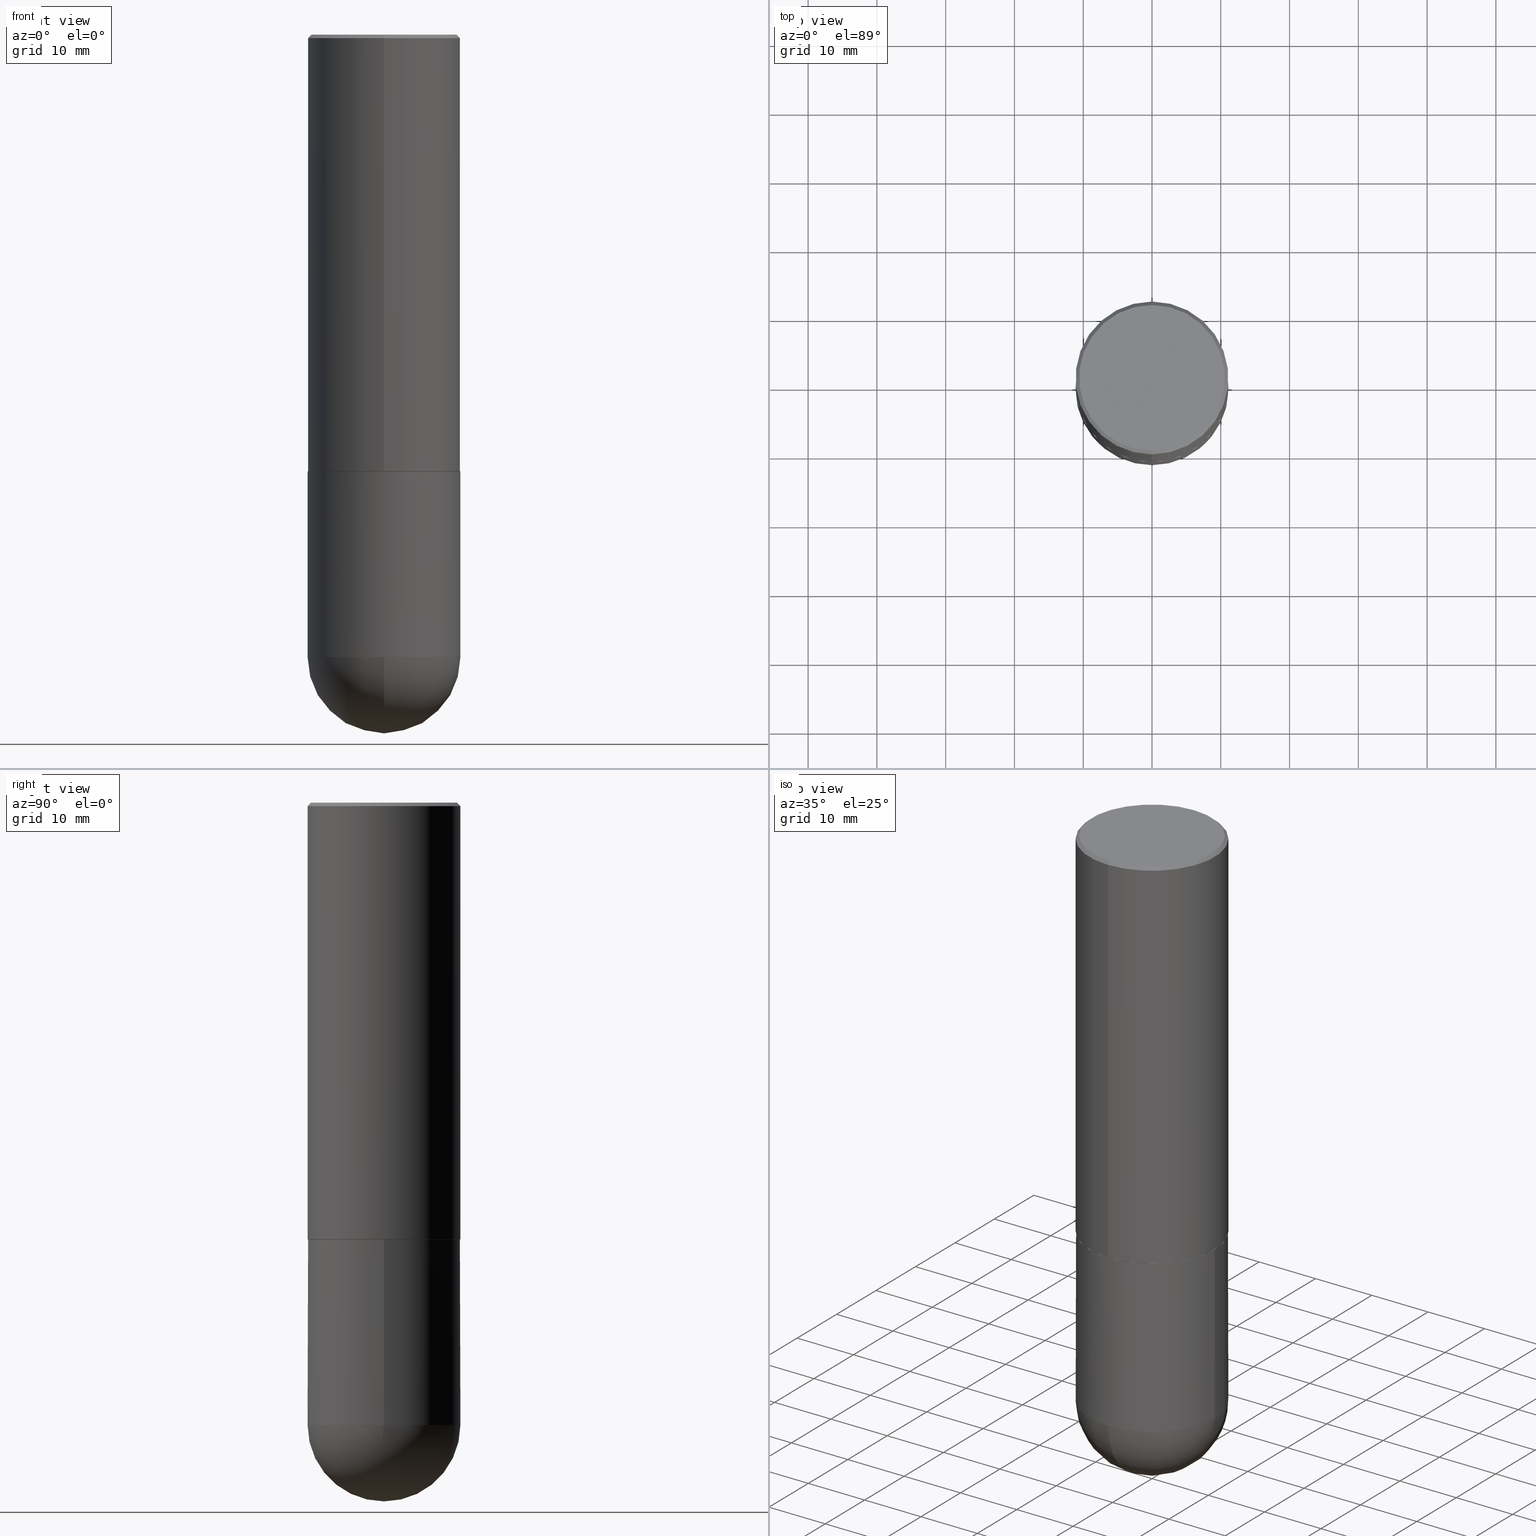
[diagram: canonical four-view strip — front | top / right | iso, engineering-drawing reading convention]
A machine part, canonical four-view strip (front | top / right | iso — engineering-drawing reading convention). The complete STEP part file that produces these views, byte-faithful:
ISO-10303-21;
HEADER;
FILE_DESCRIPTION (( 'STEP AP203' ),
    '1' );
FILE_NAME ('30174.STEP',
    '2024-02-21T16:35:57',
    ( '' ),
    ( '' ),
    'SwSTEP 2.0',
    'SolidWorks 2023',
    '' );
FILE_SCHEMA (( 'CONFIG_CONTROL_DESIGN' ));
ENDSEC;

DATA;
#1 = AXIS2_PLACEMENT_3D ( 'NONE', #284, #373, #382 ) ;
#2 = CIRCLE ( 'NONE', #32, 0.4375000000000000000 ) ;
#3 = DIRECTION ( 'NONE',  ( -2.445468806185136597E-29, 3.491481338843145583E-15, 1.000000000000000000 ) ) ;
#4 = EDGE_CURVE ( 'NONE', #410, #159, #161, .T. ) ;
#5 = CC_DESIGN_PERSON_AND_ORGANIZATION_ASSIGNMENT ( #367, #85, ( #24 ) ) ;
#6 = FACE_OUTER_BOUND ( 'NONE', #88, .T. ) ;
#7 = FACE_OUTER_BOUND ( 'NONE', #56, .T. ) ;
#8 = DIRECTION ( 'NONE',  ( -6.982962677686265133E-15, -1.000000000000000000, 3.492862791899308071E-15 ) ) ;
#9 = APPROVAL_DATE_TIME ( #264, #65 ) ;
#10 = AXIS2_PLACEMENT_3D ( 'NONE', #200, #272, #114 ) ;
#11 = APPROVAL_PERSON_ORGANIZATION ( #179, #141, #392 ) ;
#12 = CARTESIAN_POINT ( 'NONE',  ( 4.891158429268082416E-31, -6.982646455320579930E-17, -0.02000000000000009756 ) ) ;
#13 = ORIENTED_EDGE ( 'NONE', *, *, #411, .F. ) ;
#14 = CARTESIAN_POINT ( 'NONE',  ( -2.932862894047327755E-15, -0.4174999999999996492, 1.722209210515538921E-15 ) ) ;
#15 = VERTEX_POINT ( 'NONE', #280 ) ;
#16 = CARTESIAN_POINT ( 'NONE',  ( -0.4375000000000000000, -7.474928339417847141E-15, -2.500000000000000000 ) ) ;
#17 = ORIENTED_EDGE ( 'NONE', *, *, #298, .F. ) ;
#18 = AXIS2_PLACEMENT_3D ( 'NONE', #37, #70, #102 ) ;
#19 = ADVANCED_FACE ( 'NONE', ( #346 ), #72, .T. ) ;
#20 = ORIENTED_EDGE ( 'NONE', *, *, #157, .T. ) ;
#21 = ORIENTED_EDGE ( 'NONE', *, *, #97, .T. ) ;
#22 = CARTESIAN_POINT ( 'NONE',  ( -3.001467874025043875E-15, -0.4375000000000000555, -0.01999999999999857100 ) ) ;
#23 = CARTESIAN_POINT ( 'NONE',  ( 3.101519041592897653E-15, 0.4364999999999912283, -2.500000000000001776 ) ) ;
#24 = PRODUCT ( '30174', '30174', '', ( #91 ) ) ;
#25 = AXIS2_PLACEMENT_3D ( 'NONE', #28, #287, #164 ) ;
#26 = LENGTH_MEASURE_WITH_UNIT ( LENGTH_MEASURE( 0.02539999999999999897 ), #219 );
#27 = VERTEX_POINT ( 'NONE', #283 ) ;
#28 = CARTESIAN_POINT ( 'NONE',  ( 8.380862844120662879E-29, -1.291258463776875784E-14, -3.562500000000000000 ) ) ;
#29 = EDGE_CURVE ( 'NONE', #176, #338, #358, .T. ) ;
#30 = CARTESIAN_POINT ( 'NONE',  ( 8.711982622034549126E-29, -1.243840226962870597E-14, -3.562500000000000000 ) ) ;
#31 = CC_DESIGN_PERSON_AND_ORGANIZATION_ASSIGNMENT ( #80, #47, ( #99 ) ) ;
#32 = AXIS2_PLACEMENT_3D ( 'NONE', #81, #303, #292 ) ;
#33 = CARTESIAN_POINT ( 'NONE',  ( 3.105071755271698946E-15, 0.4364999999999912283, -2.500000000000001776 ) ) ;
#34 = ADVANCED_FACE ( 'NONE', ( #252 ), #125, .F. ) ;
#35 = CARTESIAN_POINT ( 'NONE',  ( 3.108624468950438708E-15, 0.4375000000000001110, -1.527453912101369540E-15 ) ) ;
#36 = DIRECTION ( 'NONE',  ( 1.000000000000000000, -6.982962677686266711E-15, 4.876176775795935232E-29 ) ) ;
#37 = CARTESIAN_POINT ( 'NONE',  ( 2.915386917934013512E-15, 0.4174999999999996492, -1.325336566064474689E-15 ) ) ;
#38 = AXIS2_PLACEMENT_3D ( 'NONE', #349, #64, #195 ) ;
#39 = LOCAL_TIME ( 11, 35, 57.00000000000000000, #76 ) ;
#40 = DATE_TIME_ROLE ( 'creation_date' ) ;
#41 = CALENDAR_DATE ( 2024, 21, 2 ) ;
#42 = MANIFOLD_SOLID_BREP ( 'Body-Move/Copy2[1]', #379 ) ;
#43 = CIRCLE ( 'NONE', #10, 0.4375000000000002776 ) ;
#44 = ORIENTED_EDGE ( 'NONE', *, *, #242, .T. ) ;
#45 = DIRECTION ( 'NONE',  ( 2.445579214634029192E-29, -3.491323227660272783E-15, -1.000000000000000000 ) ) ;
#46 = ORIENTED_EDGE ( 'NONE', *, *, #285, .T. ) ;
#47 = PERSON_AND_ORGANIZATION_ROLE ( 'creator' ) ;
#48 = DIRECTION ( 'NONE',  ( -6.982962677686264344E-15, -1.000000000000000000, 3.755117517064279208E-15 ) ) ;
#49 = ORIENTED_EDGE ( 'NONE', *, *, #385, .T. ) ;
#50 = CC_DESIGN_PERSON_AND_ORGANIZATION_ASSIGNMENT ( #109, #207, ( #118 ) ) ;
#51 = CARTESIAN_POINT ( 'NONE',  ( 8.380862844120662879E-29, -1.291258463776875784E-14, -3.562500000000000000 ) ) ;
#52 = ORIENTED_EDGE ( 'NONE', *, *, #359, .T. ) ;
#53 = VECTOR ( 'NONE', #101, 39.37007874015748143 ) ;
#54 = VECTOR ( 'NONE', #232, 39.37007874015748143 ) ;
#55 = CARTESIAN_POINT ( 'NONE',  ( 8.711982622034549126E-29, -1.243840226962870597E-14, -3.562500000000000000 ) ) ;
#56 = EDGE_LOOP ( 'NONE', ( #217, #20, #13, #123 ) ) ;
#57 = CARTESIAN_POINT ( 'NONE',  ( 8.380862844120662879E-29, -1.291258463776875784E-14, -3.562500000000000000 ) ) ;
#58 = ORIENTED_EDGE ( 'NONE', *, *, #150, .F. ) ;
#59 = ADVANCED_FACE ( 'NONE', ( #247 ), #348, .T. ) ;
#60 = DIRECTION ( 'NONE',  ( 1.000000000000000000, -6.982962677686265133E-15, 0.000000000000000000 ) ) ;
#61 = FACE_OUTER_BOUND ( 'NONE', #270, .T. ) ;
#62 = VECTOR ( 'NONE', #68, 39.37007874015748143 ) ;
#63 = CARTESIAN_POINT ( 'NONE',  ( 8.711982622034549126E-29, -1.243840226962870597E-14, -3.562500000000000000 ) ) ;
#64 = DIRECTION ( 'NONE',  ( -2.445579214634029192E-29, 3.491323227660272783E-15, 1.000000000000000000 ) ) ;
#65 = APPROVAL ( #105, 'UNSPECIFIED' ) ;
#66 = ORIENTED_EDGE ( 'NONE', *, *, #115, .T. ) ;
#67 = AXIS2_PLACEMENT_3D ( 'NONE', #307, #127, #376 ) ;
#68 = DIRECTION ( 'NONE',  ( -4.937700262165728178E-15, -0.7071067811867141062, 0.7071067811863809283 ) ) ;
#69 = FACE_OUTER_BOUND ( 'NONE', #156, .T. ) ;
#70 = DIRECTION ( 'NONE',  ( 2.445579214634028631E-29, -3.491323227660273177E-15, -1.000000000000000000 ) ) ;
#71 = PERSON_AND_ORGANIZATION_ROLE ( 'design_supplier' ) ;
#72 = CONICAL_SURFACE ( 'NONE', #192, 0.4364999999999999991, 0.7853981633976873100 ) ;
#73 = CIRCLE ( 'NONE', #265, 0.4364999999999999991 ) ;
#74 = PERSON_AND_ORGANIZATION_ROLE ( 'creator' ) ;
#75 = PRODUCT_RELATED_PRODUCT_CATEGORY ( 'detail', '', ( #24 ) ) ;
#76 = COORDINATED_UNIVERSAL_TIME_OFFSET ( 5, 0, .BEHIND. ) ;
#77 = CC_DESIGN_PERSON_AND_ORGANIZATION_ASSIGNMENT ( #330, #71, ( #99 ) ) ;
#78 = ADVANCED_FACE ( 'NONE', ( #61 ), #89, .T. ) ;
#79 = ORIENTED_EDGE ( 'NONE', *, *, #344, .T. ) ;
#80 = PERSON_AND_ORGANIZATION ( #281, #300 ) ;
#81 = CARTESIAN_POINT ( 'NONE',  ( 6.113672015462842613E-29, -8.728703347107864943E-15, -2.500000000000000000 ) ) ;
#82 = ORIENTED_EDGE ( 'NONE', *, *, #115, .F. ) ;
#83 = DIRECTION ( 'NONE',  ( -6.982962677686264344E-15, -1.000000000000000000, 3.755117517064279208E-15 ) ) ;
#84 = ORIENTED_EDGE ( 'NONE', *, *, #344, .F. ) ;
#85 = PERSON_AND_ORGANIZATION_ROLE ( 'design_owner' ) ;
#86 = ORIENTED_EDGE ( 'NONE', *, *, #395, .F. ) ;
#87 = CARTESIAN_POINT ( 'NONE',  ( -3.108624468950352327E-15, -0.4375000000000127676, -3.562499999999998224 ) ) ;
#88 = EDGE_LOOP ( 'NONE', ( #49, #79 ) ) ;
#89 = CONICAL_SURFACE ( 'NONE', #320, 0.4375000000000000000, 0.7853981633974476129 ) ;
#90 = AXIS2_PLACEMENT_3D ( 'NONE', #343, #93, #314 ) ;
#91 = MECHANICAL_CONTEXT ( 'NONE', #378, 'mechanical' ) ;
#92 = DIRECTION ( 'NONE',  ( 6.982962677686265133E-15, 1.000000000000000000, -3.492862791899308071E-15 ) ) ;
#93 = DIRECTION ( 'NONE',  ( -2.445579214634029192E-29, 3.491323227660272783E-15, 1.000000000000000000 ) ) ;
#94 = EDGE_LOOP ( 'NONE', ( #345, #209, #21, #58 ) ) ;
#95 = LINE ( 'NONE', #22, #153 ) ;
#96 = LINE ( 'NONE', #222, #53 ) ;
#97 = EDGE_CURVE ( 'NONE', #306, #187, #96, .T. ) ;
#98 = AXIS2_PLACEMENT_3D ( 'NONE', #51, #250, #407 ) ;
#99 = PRODUCT_DEFINITION_FORMATION_WITH_SPECIFIED_SOURCE ( 'ANY', '', #24, .NOT_KNOWN. ) ;
#100 = FACE_OUTER_BOUND ( 'NONE', #94, .T. ) ;
#101 = DIRECTION ( 'NONE',  ( -2.445579214634028911E-29, 3.491323227660273177E-15, 1.000000000000000000 ) ) ;
#102 = DIRECTION ( 'NONE',  ( 6.982962677686265922E-15, 1.000000000000000000, -3.491323227660273177E-15 ) ) ;
#103 = CARTESIAN_POINT ( 'NONE',  ( -3.048063208809993352E-15, -0.4365000000000087144, -2.499999999999998668 ) ) ;
#104 = DIRECTION ( 'NONE',  ( -2.445579214634029192E-29, 3.491323227660272783E-15, 1.000000000000000000 ) ) ;
#105 = APPROVAL_STATUS ( 'not_yet_approved' ) ;
#106 = CIRCLE ( 'NONE', #90, 0.4174999999999996492 ) ;
#107 = CC_DESIGN_APPROVAL ( #65, ( #142 ) ) ;
#108 = CC_DESIGN_DATE_AND_TIME_ASSIGNMENT ( #329, #40, ( #142 ) ) ;
#109 = PERSON_AND_ORGANIZATION ( #281, #300 ) ;
#110 = EDGE_CURVE ( 'NONE', #338, #27, #144, .T. ) ;
#111 = ORIENTED_EDGE ( 'NONE', *, *, #152, .F. ) ;
#112 = FACE_OUTER_BOUND ( 'NONE', #277, .T. ) ;
#113 = EDGE_LOOP ( 'NONE', ( #350, #213 ) ) ;
#114 = DIRECTION ( 'NONE',  ( -6.982962677686265133E-15, -1.000000000000000000, 3.746534391310987190E-15 ) ) ;
#115 = EDGE_CURVE ( 'NONE', #245, #393, #352, .T. ) ;
#116 = CIRCLE ( 'NONE', #183, 0.4375000000000001665 ) ;
#117 = ORIENTED_EDGE ( 'NONE', *, *, #4, .T. ) ;
#118 = SECURITY_CLASSIFICATION ( '', '', #263 ) ;
#119 = APPLICATION_PROTOCOL_DEFINITION ( 'international standard', 'config_control_design', 1994, #378 ) ;
#120 = APPLICATION_CONTEXT ( 'configuration controlled 3d designs of mechanical parts and assemblies' ) ;
#121 = ORIENTED_EDGE ( 'NONE', *, *, #29, .F. ) ;
#122 = CARTESIAN_POINT ( 'NONE',  ( 3.055046171487827277E-15, 0.4374999999999873435, -3.562500000000001776 ) ) ;
#123 = ORIENTED_EDGE ( 'NONE', *, *, #242, .F. ) ;
#124 = CARTESIAN_POINT ( 'NONE',  ( 0.000000000000000000, 0.000000000000000000, 0.000000000000000000 ) ) ;
#125 = PLANE ( 'NONE',  #182 ) ;
#126 = CC_DESIGN_APPROVAL ( #158, ( #99 ) ) ;
#127 = DIRECTION ( 'NONE',  ( -2.445579214634029192E-29, 3.491323227660272783E-15, 1.000000000000000000 ) ) ;
#128 = DIRECTION ( 'NONE',  ( -2.445579214634029192E-29, 3.491323227660272783E-15, 1.000000000000000000 ) ) ;
#129 = DIRECTION ( 'NONE',  ( -2.445579214634029192E-29, 3.491323227660272783E-15, 1.000000000000000000 ) ) ;
#130 = DIRECTION ( 'NONE',  ( -1.000000000000000000, 6.982962677686265922E-15, -4.876176775795935793E-29 ) ) ;
#131 = CARTESIAN_POINT ( 'NONE',  ( 6.113672015462842613E-29, -8.728703347107864943E-15, -2.500000000000000000 ) ) ;
#132 = CIRCLE ( 'NONE', #360, 0.4374999999999998890 ) ;
#133 = APPROVAL_PERSON_ORGANIZATION ( #173, #158, #205 ) ;
#134 = CYLINDRICAL_SURFACE ( 'NONE', #193, 0.4375000000000001110 ) ;
#135 = CARTESIAN_POINT ( 'NONE',  ( 8.711982622034549126E-29, -1.243840226962870597E-14, -3.562500000000000000 ) ) ;
#136 = VECTOR ( 'NONE', #412, 39.37007874015748854 ) ;
#137 = AXIS2_PLACEMENT_3D ( 'NONE', #313, #128, #227 ) ;
#138 = CARTESIAN_POINT ( 'NONE',  ( 0.4374999999999998890, -3.055046171487740897E-15, 2.133327339410721209E-29 ) ) ;
#139 = APPROVAL_STATUS ( 'not_yet_approved' ) ;
#140 = APPROVAL_STATUS ( 'not_yet_approved' ) ;
#141 = APPROVAL ( #140, 'UNSPECIFIED' ) ;
#142 = PRODUCT_DEFINITION ( 'UNKNOWN', '', #99, #230 ) ;
#143 = CALENDAR_DATE ( 2024, 21, 2 ) ;
#144 = CIRCLE ( 'NONE', #299, 0.4374999999999998890 ) ;
#145 =( GEOMETRIC_REPRESENTATION_CONTEXT ( 3 ) GLOBAL_UNCERTAINTY_ASSIGNED_CONTEXT ( ( #271 ) ) GLOBAL_UNIT_ASSIGNED_CONTEXT ( ( #274, #340, #310 ) ) REPRESENTATION_CONTEXT ( 'NONE', 'WORKASPACE' ) );
#146 = CARTESIAN_POINT ( 'NONE',  ( 0.4375000000000000000, -1.178374951859560505E-14, -2.500000000000000000 ) ) ;
#147 = EDGE_LOOP ( 'NONE', ( #86, #396 ) ) ;
#148 = SHAPE_DEFINITION_REPRESENTATION ( #190, #398 ) ;
#149 = CARTESIAN_POINT ( 'NONE',  ( 0.000000000000000000, 0.000000000000000000, 0.000000000000000000 ) ) ;
#150 = EDGE_CURVE ( 'NONE', #159, #187, #171, .T. ) ;
#151 = ORIENTED_EDGE ( 'NONE', *, *, #157, .F. ) ;
#152 = EDGE_CURVE ( 'NONE', #370, #241, #400, .T. ) ;
#153 = VECTOR ( 'NONE', #409, 39.37007874015748854 ) ;
#154 = ORIENTED_EDGE ( 'NONE', *, *, #110, .F. ) ;
#155 = LOCAL_TIME ( 11, 35, 57.00000000000000000, #355 ) ;
#156 = EDGE_LOOP ( 'NONE', ( #337, #301, #117, #404 ) ) ;
#157 = EDGE_CURVE ( 'NONE', #180, #15, #381, .T. ) ;
#158 = APPROVAL ( #139, 'UNSPECIFIED' ) ;
#159 = VERTEX_POINT ( 'NONE', #375 ) ;
#160 = DIRECTION ( 'NONE',  ( -2.445579214634029192E-29, 3.491323227660272783E-15, 1.000000000000000000 ) ) ;
#161 = LINE ( 'NONE', #163, #136 ) ;
#162 = AXIS2_PLACEMENT_3D ( 'NONE', #170, #231, #8 ) ;
#163 = CARTESIAN_POINT ( 'NONE',  ( 3.055046171487741686E-15, 0.4374999999999998890, -0.02000000000000162759 ) ) ;
#164 = DIRECTION ( 'NONE',  ( -7.105427357601001070E-15, -1.000000000000000000, 0.000000000000000000 ) ) ;
#165 = DIRECTION ( 'NONE',  ( 1.000000000000000000, -6.982962677686265133E-15, 0.000000000000000000 ) ) ;
#166 = CIRCLE ( 'NONE', #323, 0.4375000000000002776 ) ;
#167 = CARTESIAN_POINT ( 'NONE',  ( 0.000000000000000000, 0.000000000000000000, 0.000000000000000000 ) ) ;
#168 = ADVANCED_FACE ( 'NONE', ( #100 ), #225, .T. ) ;
#169 = DIRECTION ( 'NONE',  ( -2.445579214634028911E-29, 3.491323227660273177E-15, 1.000000000000000000 ) ) ;
#170 = CARTESIAN_POINT ( 'NONE',  ( 4.891158429268082416E-31, -6.982646455320579930E-17, -0.02000000000000009756 ) ) ;
#171 = CIRCLE ( 'NONE', #137, 0.4375000000000000000 ) ;
#172 = DIRECTION ( 'NONE',  ( 1.000000000000000000, -6.982962677686265133E-15, 0.000000000000000000 ) ) ;
#173 = PERSON_AND_ORGANIZATION ( #281, #300 ) ;
#174 = DATE_AND_TIME ( #41, #266 ) ;
#175 = AXIS2_PLACEMENT_3D ( 'NONE', #131, #3, #253 ) ;
#176 = VERTEX_POINT ( 'NONE', #319 ) ;
#177 = CARTESIAN_POINT ( 'NONE',  ( -3.048063208809993352E-15, -0.4365000000000087144, -2.499999999999998668 ) ) ;
#178 = ORIENTED_EDGE ( 'NONE', *, *, #317, .T. ) ;
#179 = PERSON_AND_ORGANIZATION ( #281, #300 ) ;
#180 = VERTEX_POINT ( 'NONE', #33 ) ;
#181 = CARTESIAN_POINT ( 'NONE',  ( -0.4374999999999998890, 3.108624468950437524E-15, -2.152034101986520964E-29 ) ) ;
#182 = AXIS2_PLACEMENT_3D ( 'NONE', #282, #194, #130 ) ;
#183 = AXIS2_PLACEMENT_3D ( 'NONE', #57, #312, #188 ) ;
#184 = EDGE_LOOP ( 'NONE', ( #304, #66, #206, #154 ) ) ;
#185 = CC_DESIGN_PERSON_AND_ORGANIZATION_ASSIGNMENT ( #357, #74, ( #142 ) ) ;
#186 = EDGE_CURVE ( 'NONE', #187, #159, #371, .T. ) ;
#187 = VERTEX_POINT ( 'NONE', #351 ) ;
#188 = DIRECTION ( 'NONE',  ( 6.982962677686265922E-15, 1.000000000000000000, 0.000000000000000000 ) ) ;
#189 = DIRECTION ( 'NONE',  ( 1.000000000000000000, -6.982962677686265133E-15, 0.000000000000000000 ) ) ;
#190 = PRODUCT_DEFINITION_SHAPE ( 'NONE', 'NONE',  #142 ) ;
#191 = ORIENTED_EDGE ( 'NONE', *, *, #255, .F. ) ;
#192 = AXIS2_PLACEMENT_3D ( 'NONE', #405, #408, #256 ) ;
#193 = AXIS2_PLACEMENT_3D ( 'NONE', #149, #327, #261 ) ;
#194 = DIRECTION ( 'NONE',  ( 2.438088387897960049E-29, -3.491481338843145188E-15, -1.000000000000000000 ) ) ;
#195 = DIRECTION ( 'NONE',  ( -6.982962677686265922E-15, -1.000000000000000000, 3.491323227660272388E-15 ) ) ;
#196 = EDGE_LOOP ( 'NONE', ( #364, #309, #336, #332, #111 ) ) ;
#197 = AXIS2_PLACEMENT_3D ( 'NONE', #229, #365, #240 ) ;
#198 = FACE_OUTER_BOUND ( 'NONE', #316, .T. ) ;
#199 = ADVANCED_FACE ( 'NONE', ( #387 ), #354, .T. ) ;
#200 = CARTESIAN_POINT ( 'NONE',  ( 6.111502457370440261E-29, -8.724816745923021924E-15, -2.499000000000000110 ) ) ;
#201 = LINE ( 'NONE', #35, #293 ) ;
#202 = APPROVAL_DATE_TIME ( #174, #158 ) ;
#203 = AXIS2_PLACEMENT_3D ( 'NONE', #124, #401, #246 ) ;
#204 = COORDINATED_UNIVERSAL_TIME_OFFSET ( 5, 0, .BEHIND. ) ;
#205 = APPROVAL_ROLE ( '' ) ;
#206 = ORIENTED_EDGE ( 'NONE', *, *, #331, .F. ) ;
#207 = PERSON_AND_ORGANIZATION_ROLE ( 'classification_officer' ) ;
#208 = LINE ( 'NONE', #138, #54 ) ;
#209 = ORIENTED_EDGE ( 'NONE', *, *, #255, .T. ) ;
#210 = DIRECTION ( 'NONE',  ( 6.982962677686265133E-15, 1.000000000000000000, -3.492862791899308071E-15 ) ) ;
#211 = ORIENTED_EDGE ( 'NONE', *, *, #297, .T. ) ;
#212 = APPLICATION_PROTOCOL_DEFINITION ( 'international standard', 'config_control_design', 1994, #120 ) ;
#213 = ORIENTED_EDGE ( 'NONE', *, *, #152, .T. ) ;
#214 = ADVANCED_FACE ( 'NONE', ( #7 ), #223, .T. ) ;
#215 = FACE_OUTER_BOUND ( 'NONE', #184, .T. ) ;
#216 = AXIS2_PLACEMENT_3D ( 'NONE', #238, #363, #36 ) ;
#217 = ORIENTED_EDGE ( 'NONE', *, *, #395, .T. ) ;
#218 = CARTESIAN_POINT ( 'NONE',  ( 4.891158429268082416E-31, -6.982646455320579930E-17, -0.02000000000000009756 ) ) ;
#219 =( LENGTH_UNIT ( ) NAMED_UNIT ( * ) SI_UNIT ( $, .METRE. ) );
#220 = DIRECTION ( 'NONE',  ( -2.445468806185136597E-29, 3.491481338843145583E-15, 1.000000000000000000 ) ) ;
#221 = PERSON_AND_ORGANIZATION ( #281, #300 ) ;
#222 = CARTESIAN_POINT ( 'NONE',  ( -3.055046171487742080E-15, -0.4375000000000001110, 1.527453912101369540E-15 ) ) ;
#223 = CONICAL_SURFACE ( 'NONE', #197, 0.4364999999999999991, 0.7853981633976873100 ) ;
#224 = APPROVAL_PERSON_ORGANIZATION ( #221, #65, #233 ) ;
#225 = CYLINDRICAL_SURFACE ( 'NONE', #38, 0.4375000000000001110 ) ;
#226 = EDGE_CURVE ( 'NONE', #176, #241, #208, .T. ) ;
#227 = DIRECTION ( 'NONE',  ( -6.982962677686265133E-15, -1.000000000000000000, 3.492862791899308071E-15 ) ) ;
#228 = ADVANCED_FACE ( 'NONE', ( #324 ), #294, .F. ) ;
#229 = CARTESIAN_POINT ( 'NONE',  ( 6.113948036585074240E-29, -8.728308069150681957E-15, -2.500000000000000000 ) ) ;
#230 = DESIGN_CONTEXT ( 'detailed design', #120, 'design' ) ;
#231 = DIRECTION ( 'NONE',  ( -2.445579214634029192E-29, 3.491323227660272783E-15, 1.000000000000000000 ) ) ;
#232 = DIRECTION ( 'NONE',  ( -2.445468806185136877E-29, 3.491481338843145188E-15, 1.000000000000000000 ) ) ;
#233 = APPROVAL_ROLE ( '' ) ;
#234 = CIRCLE ( 'NONE', #328, 0.4374999999999998890 ) ;
#235 = VERTEX_POINT ( 'NONE', #103 ) ;
#236 = DATE_AND_TIME ( #389, #39 ) ;
#237 = ADVANCED_FACE ( 'NONE', ( #69 ), #275, .T. ) ;
#238 = CARTESIAN_POINT ( 'NONE',  ( 0.000000000000000000, 0.000000000000000000, 0.000000000000000000 ) ) ;
#239 = ORIENTED_EDGE ( 'NONE', *, *, #97, .F. ) ;
#240 = DIRECTION ( 'NONE',  ( -6.982962677686264344E-15, -1.000000000000000000, 3.755117517064279208E-15 ) ) ;
#241 = VERTEX_POINT ( 'NONE', #146 ) ;
#242 = EDGE_CURVE ( 'NONE', #235, #306, #353, .T. ) ;
#243 = ORIENTED_EDGE ( 'NONE', *, *, #411, .T. ) ;
#244 = CARTESIAN_POINT ( 'NONE',  ( 6.111502457370440261E-29, -8.724816745923021924E-15, -2.499000000000000110 ) ) ;
#245 = VERTEX_POINT ( 'NONE', #290 ) ;
#246 = DIRECTION ( 'NONE',  ( 1.000000000000000000, 0.000000000000000000, 0.000000000000000000 ) ) ;
#247 = FACE_OUTER_BOUND ( 'NONE', #361, .T. ) ;
#248 = CARTESIAN_POINT ( 'NONE',  ( 6.113948036585074240E-29, -8.728308069150681957E-15, -2.500000000000000000 ) ) ;
#249 = DIRECTION ( 'NONE',  ( 5.024295867789263036E-15, 0.7071067811867189912, 0.7071067811863760433 ) ) ;
#250 = DIRECTION ( 'NONE',  ( -1.000000000000000000, 6.982962677686265922E-15, -4.883557194083112340E-29 ) ) ;
#251 = ADVANCED_FACE ( 'NONE', ( #112 ), #384, .T. ) ;
#252 = FACE_OUTER_BOUND ( 'NONE', #113, .T. ) ;
#253 = DIRECTION ( 'NONE',  ( 1.000000000000000000, -6.982962677686265133E-15, 0.000000000000000000 ) ) ;
#254 = LOCAL_TIME ( 11, 35, 57.00000000000000000, #302 ) ;
#255 = EDGE_CURVE ( 'NONE', #15, #306, #43, .T. ) ;
#256 = DIRECTION ( 'NONE',  ( -6.982962677686264344E-15, -1.000000000000000000, 3.755117517064279208E-15 ) ) ;
#257 = EDGE_CURVE ( 'NONE', #241, #370, #2, .T. ) ;
#258 = PLANE ( 'NONE',  #18 ) ;
#259 = DIRECTION ( 'NONE',  ( -2.445468806185136597E-29, 3.491481338843145583E-15, 1.000000000000000000 ) ) ;
#260 = AXIS2_PLACEMENT_3D ( 'NONE', #167, #269, #335 ) ;
#261 = DIRECTION ( 'NONE',  ( -6.982962677686265922E-15, -1.000000000000000000, 3.491323227660272388E-15 ) ) ;
#262 = CALENDAR_DATE ( 2024, 21, 2 ) ;
#263 = SECURITY_CLASSIFICATION_LEVEL ( 'unclassified' ) ;
#264 = DATE_AND_TIME ( #295, #155 ) ;
#265 = AXIS2_PLACEMENT_3D ( 'NONE', #397, #104, #83 ) ;
#266 = LOCAL_TIME ( 11, 35, 57.00000000000000000, #362 ) ;
#267 = VERTEX_POINT ( 'NONE', #14 ) ;
#268 = ADVANCED_FACE ( 'NONE', ( #198 ), #134, .T. ) ;
#269 = DIRECTION ( 'NONE',  ( -2.445468806185136597E-29, 3.491481338843145583E-15, 1.000000000000000000 ) ) ;
#270 = EDGE_LOOP ( 'NONE', ( #84, #342, #322, #368 ) ) ;
#271 = UNCERTAINTY_MEASURE_WITH_UNIT (LENGTH_MEASURE( 1.000000000000000082E-05 ), #274, 'distance_accuracy_value', 'NONE');
#272 = DIRECTION ( 'NONE',  ( -2.445579214634029192E-29, 3.491323227660272783E-15, 1.000000000000000000 ) ) ;
#273 = ORIENTED_EDGE ( 'NONE', *, *, #29, .T. ) ;
#274 =( CONVERSION_BASED_UNIT ( 'INCH', #26 ) LENGTH_UNIT ( ) NAMED_UNIT ( #383 ) );
#275 = CONICAL_SURFACE ( 'NONE', #406, 0.4375000000000000000, 0.7853981633974476129 ) ;
#276 = CC_DESIGN_APPROVAL ( #141, ( #118 ) ) ;
#277 = EDGE_LOOP ( 'NONE', ( #366, #52, #278, #311, #273 ) ) ;
#278 = ORIENTED_EDGE ( 'NONE', *, *, #257, .F. ) ;
#279 = SPHERICAL_SURFACE ( 'NONE', #98, 0.4375000000000001665 ) ;
#280 = CARTESIAN_POINT ( 'NONE',  ( 3.108624468950470262E-15, 0.4374999999999915068, -2.499000000000001886 ) ) ;
#281 = PERSON ( 'UNSPECIFIED', 'UNSPECIFIED', 'UNSPECIFIED', ('UNSPECIFIED'), ('UNSPECIFIED'), ('UNSPECIFIED') ) ;
#282 = CARTESIAN_POINT ( 'NONE',  ( 3.055046171487802034E-15, 0.4374999999999912292, -2.500000000000001776 ) ) ;
#283 = CARTESIAN_POINT ( 'NONE',  ( -0.4374999999999998890, -7.474928339417851874E-15, -3.562500000000000000 ) ) ;
#284 = CARTESIAN_POINT ( 'NONE',  ( 8.380862844120662879E-29, -1.291258463776875784E-14, -3.562500000000000000 ) ) ;
#285 = EDGE_CURVE ( 'NONE', #180, #235, #73, .T. ) ;
#286 = CLOSED_SHELL ( 'NONE', ( #214, #268, #78, #237, #168, #19, #228, #289 ) ) ;
#287 = DIRECTION ( 'NONE',  ( -1.000000000000000000, 7.105427357601001070E-15, -4.926315508542082329E-29 ) ) ;
#288 = CIRCLE ( 'NONE', #67, 0.4174999999999996492 ) ;
#289 = ADVANCED_FACE ( 'NONE', ( #6 ), #258, .F. ) ;
#290 = CARTESIAN_POINT ( 'NONE',  ( 9.469462209402459055E-29, -1.441331857478128510E-14, -4.000000000000000000 ) ) ;
#291 = CARTESIAN_POINT ( 'NONE',  ( 6.113948036585074240E-29, -8.728308069150681957E-15, -2.500000000000000000 ) ) ;
#292 = DIRECTION ( 'NONE',  ( 1.000000000000000000, -6.982962677686265133E-15, 0.000000000000000000 ) ) ;
#293 = VECTOR ( 'NONE', #169, 39.37007874015748143 ) ;
#294 = PLANE ( 'NONE',  #391 ) ;
#295 = CALENDAR_DATE ( 2024, 21, 2 ) ;
#296 = DATE_AND_TIME ( #262, #254 ) ;
#297 = EDGE_CURVE ( 'NONE', #15, #159, #201, .T. ) ;
#298 = EDGE_CURVE ( 'NONE', #393, #176, #132, .T. ) ;
#299 = AXIS2_PLACEMENT_3D ( 'NONE', #63, #318, #189 ) ;
#300 = ORGANIZATION ( 'UNSPECIFIED', 'UNSPECIFIED', '' ) ;
#301 = ORIENTED_EDGE ( 'NONE', *, *, #385, .F. ) ;
#302 = COORDINATED_UNIVERSAL_TIME_OFFSET ( 5, 0, .BEHIND. ) ;
#303 = DIRECTION ( 'NONE',  ( -2.445468806185136597E-29, 3.491481338843145583E-15, 1.000000000000000000 ) ) ;
#304 = ORIENTED_EDGE ( 'NONE', *, *, #317, .F. ) ;
#305 = LINE ( 'NONE', #181, #380 ) ;
#306 = VERTEX_POINT ( 'NONE', #386 ) ;
#307 = CARTESIAN_POINT ( 'NONE',  ( -6.470556600842424739E-45, 9.237404546633045447E-31, 2.645817629673760558E-16 ) ) ;
#308 = LOCAL_TIME ( 11, 35, 57.00000000000000000, #204 ) ;
#309 = ORIENTED_EDGE ( 'NONE', *, *, #331, .T. ) ;
#310 =( NAMED_UNIT ( * ) SI_UNIT ( $, .STERADIAN. ) SOLID_ANGLE_UNIT ( ) );
#311 = ORIENTED_EDGE ( 'NONE', *, *, #226, .F. ) ;
#312 = DIRECTION ( 'NONE',  ( 1.000000000000000000, -6.982962677686265922E-15, 4.883557194083112340E-29 ) ) ;
#313 = CARTESIAN_POINT ( 'NONE',  ( 4.891158429268082416E-31, -6.982646455320579930E-17, -0.02000000000000009756 ) ) ;
#314 = DIRECTION ( 'NONE',  ( -6.982962677686265922E-15, -1.000000000000000000, 3.491323227660273177E-15 ) ) ;
#315 = AXIS2_PLACEMENT_3D ( 'NONE', #248, #129, #48 ) ;
#316 = EDGE_LOOP ( 'NONE', ( #243, #211, #399, #239 ) ) ;
#317 = EDGE_CURVE ( 'NONE', #245, #338, #116, .T. ) ;
#318 = DIRECTION ( 'NONE',  ( -2.445468806185136597E-29, 3.491481338843145583E-15, 1.000000000000000000 ) ) ;
#319 = CARTESIAN_POINT ( 'NONE',  ( 0.4374999999999998890, -1.363859897985603030E-14, -3.562500000000000000 ) ) ;
#320 = AXIS2_PLACEMENT_3D ( 'NONE', #218, #377, #92 ) ;
#321 = MANIFOLD_SOLID_BREP ( 'Body-Move/Copy2[2]', #286 ) ;
#322 = ORIENTED_EDGE ( 'NONE', *, *, #186, .T. ) ;
#323 = AXIS2_PLACEMENT_3D ( 'NONE', #244, #160, #369 ) ;
#324 = FACE_OUTER_BOUND ( 'NONE', #147, .T. ) ;
#325 = ADVANCED_FACE ( 'NONE', ( #215 ), #279, .T. ) ;
#326 = DIRECTION ( 'NONE',  ( -6.982962677686265922E-15, -1.000000000000000000, 3.491323227660273177E-15 ) ) ;
#327 = DIRECTION ( 'NONE',  ( -2.445579214634029192E-29, 3.491323227660272783E-15, 1.000000000000000000 ) ) ;
#328 = AXIS2_PLACEMENT_3D ( 'NONE', #55, #372, #60 ) ;
#329 = DATE_AND_TIME ( #143, #308 ) ;
#330 = PERSON_AND_ORGANIZATION ( #281, #300 ) ;
#331 = EDGE_CURVE ( 'NONE', #27, #393, #234, .T. ) ;
#332 = ORIENTED_EDGE ( 'NONE', *, *, #226, .T. ) ;
#333 = APPROVAL_DATE_TIME ( #236, #141 ) ;
#334 = VECTOR ( 'NONE', #249, 39.37007874015748143 ) ;
#335 = DIRECTION ( 'NONE',  ( 1.000000000000000000, -6.982962677686266711E-15, 4.876176775795935232E-29 ) ) ;
#336 = ORIENTED_EDGE ( 'NONE', *, *, #298, .T. ) ;
#337 = ORIENTED_EDGE ( 'NONE', *, *, #341, .F. ) ;
#338 = VERTEX_POINT ( 'NONE', #122 ) ;
#339 = CIRCLE ( 'NONE', #315, 0.4364999999999999991 ) ;
#340 =( NAMED_UNIT ( * ) PLANE_ANGLE_UNIT ( ) SI_UNIT ( $, .RADIAN. ) );
#341 = EDGE_CURVE ( 'NONE', #267, #187, #95, .T. ) ;
#342 = ORIENTED_EDGE ( 'NONE', *, *, #341, .T. ) ;
#343 = CARTESIAN_POINT ( 'NONE',  ( -6.470556600842424739E-45, 9.237404546633045447E-31, 2.645817629673760558E-16 ) ) ;
#344 = EDGE_CURVE ( 'NONE', #267, #410, #288, .T. ) ;
#345 = ORIENTED_EDGE ( 'NONE', *, *, #297, .F. ) ;
#346 = FACE_OUTER_BOUND ( 'NONE', #402, .T. ) ;
#347 = CC_DESIGN_SECURITY_CLASSIFICATION ( #118, ( #99 ) ) ;
#348 = SPHERICAL_SURFACE ( 'NONE', #1, 0.4375000000000001665 ) ;
#349 = CARTESIAN_POINT ( 'NONE',  ( 0.000000000000000000, 0.000000000000000000, 0.000000000000000000 ) ) ;
#350 = ORIENTED_EDGE ( 'NONE', *, *, #257, .T. ) ;
#351 = CARTESIAN_POINT ( 'NONE',  ( -3.001467874025043875E-15, -0.4375000000000000555, -0.01999999999999857100 ) ) ;
#352 = CIRCLE ( 'NONE', #25, 0.4375000000000001665 ) ;
#353 = LINE ( 'NONE', #177, #62 ) ;
#354 = CYLINDRICAL_SURFACE ( 'NONE', #260, 0.4374999999999998890 ) ;
#355 = COORDINATED_UNIVERSAL_TIME_OFFSET ( 5, 0, .BEHIND. ) ;
#356 = DATE_TIME_ROLE ( 'classification_date' ) ;
#357 = PERSON_AND_ORGANIZATION ( #281, #300 ) ;
#358 = CIRCLE ( 'NONE', #390, 0.4374999999999998890 ) ;
#359 = EDGE_CURVE ( 'NONE', #27, #370, #305, .T. ) ;
#360 = AXIS2_PLACEMENT_3D ( 'NONE', #135, #259, #172 ) ;
#361 = EDGE_LOOP ( 'NONE', ( #82, #178, #121, #17 ) ) ;
#362 = COORDINATED_UNIVERSAL_TIME_OFFSET ( 5, 0, .BEHIND. ) ;
#363 = DIRECTION ( 'NONE',  ( -2.445468806185136597E-29, 3.491481338843145583E-15, 1.000000000000000000 ) ) ;
#364 = ORIENTED_EDGE ( 'NONE', *, *, #359, .F. ) ;
#365 = DIRECTION ( 'NONE',  ( -2.445579214634029192E-29, 3.491323227660272783E-15, 1.000000000000000000 ) ) ;
#366 = ORIENTED_EDGE ( 'NONE', *, *, #110, .T. ) ;
#367 = PERSON_AND_ORGANIZATION ( #281, #300 ) ;
#368 = ORIENTED_EDGE ( 'NONE', *, *, #4, .F. ) ;
#369 = DIRECTION ( 'NONE',  ( -6.982962677686265133E-15, -1.000000000000000000, 3.746534391310987190E-15 ) ) ;
#370 = VERTEX_POINT ( 'NONE', #16 ) ;
#371 = CIRCLE ( 'NONE', #162, 0.4375000000000000000 ) ;
#372 = DIRECTION ( 'NONE',  ( -2.445468806185136597E-29, 3.491481338843145583E-15, 1.000000000000000000 ) ) ;
#373 = DIRECTION ( 'NONE',  ( -1.000000000000000000, 6.982962677686265922E-15, -4.883557194083112340E-29 ) ) ;
#374 = DIRECTION ( 'NONE',  ( -2.445468806185136877E-29, 3.491481338843145188E-15, 1.000000000000000000 ) ) ;
#375 = CARTESIAN_POINT ( 'NONE',  ( 3.055046171487741686E-15, 0.4374999999999998890, -0.02000000000000162759 ) ) ;
#376 = DIRECTION ( 'NONE',  ( -6.982962677686265922E-15, -1.000000000000000000, 3.491323227660273177E-15 ) ) ;
#377 = DIRECTION ( 'NONE',  ( 2.445579214634029192E-29, -3.491323227660272783E-15, -1.000000000000000000 ) ) ;
#378 = APPLICATION_CONTEXT ( 'configuration controlled 3d designs of mechanical parts and assemblies' ) ;
#379 = CLOSED_SHELL ( 'NONE', ( #251, #325, #59, #34, #199 ) ) ;
#380 = VECTOR ( 'NONE', #374, 39.37007874015748143 ) ;
#381 = LINE ( 'NONE', #23, #334 ) ;
#382 = DIRECTION ( 'NONE',  ( 6.982962677686265922E-15, 1.000000000000000000, -3.746534391310987979E-15 ) ) ;
#383 = DIMENSIONAL_EXPONENTS ( 1.000000000000000000, 0.000000000000000000, 0.000000000000000000, 0.000000000000000000, 0.000000000000000000, 0.000000000000000000, 0.000000000000000000 ) ;
#384 = CYLINDRICAL_SURFACE ( 'NONE', #216, 0.4374999999999998890 ) ;
#385 = EDGE_CURVE ( 'NONE', #410, #267, #106, .T. ) ;
#386 = CARTESIAN_POINT ( 'NONE',  ( -3.055046171487681732E-15, -0.4375000000000089928, -2.498999999999998778 ) ) ;
#387 = FACE_OUTER_BOUND ( 'NONE', #196, .T. ) ;
#388 = CC_DESIGN_DATE_AND_TIME_ASSIGNMENT ( #296, #356, ( #118 ) ) ;
#389 = CALENDAR_DATE ( 2024, 21, 2 ) ;
#390 = AXIS2_PLACEMENT_3D ( 'NONE', #30, #220, #165 ) ;
#391 = AXIS2_PLACEMENT_3D ( 'NONE', #291, #394, #326 ) ;
#392 = APPROVAL_ROLE ( '' ) ;
#393 = VERTEX_POINT ( 'NONE', #87 ) ;
#394 = DIRECTION ( 'NONE',  ( -2.445579214634028631E-29, 3.491323227660273177E-15, 1.000000000000000000 ) ) ;
#395 = EDGE_CURVE ( 'NONE', #235, #180, #339, .T. ) ;
#396 = ORIENTED_EDGE ( 'NONE', *, *, #285, .F. ) ;
#397 = CARTESIAN_POINT ( 'NONE',  ( 6.113948036585074240E-29, -8.728308069150681957E-15, -2.500000000000000000 ) ) ;
#398 = ADVANCED_BREP_SHAPE_REPRESENTATION ( '30174', ( #42, #321, #203 ), #145 ) ;
#399 = ORIENTED_EDGE ( 'NONE', *, *, #186, .F. ) ;
#400 = CIRCLE ( 'NONE', #175, 0.4375000000000000000 ) ;
#401 = DIRECTION ( 'NONE',  ( 0.000000000000000000, 0.000000000000000000, 1.000000000000000000 ) ) ;
#402 = EDGE_LOOP ( 'NONE', ( #151, #46, #44, #191 ) ) ;
#403 = CARTESIAN_POINT ( 'NONE',  ( 2.985216544710877599E-15, 0.4174999999999996492, -1.193045684580786612E-15 ) ) ;
#404 = ORIENTED_EDGE ( 'NONE', *, *, #150, .T. ) ;
#405 = CARTESIAN_POINT ( 'NONE',  ( 6.113948036585074240E-29, -8.728308069150681957E-15, -2.500000000000000000 ) ) ;
#406 = AXIS2_PLACEMENT_3D ( 'NONE', #12, #45, #210 ) ;
#407 = DIRECTION ( 'NONE',  ( 6.982962677686265922E-15, 1.000000000000000000, -3.746534391310987979E-15 ) ) ;
#408 = DIRECTION ( 'NONE',  ( -2.445579214634029192E-29, 3.491323227660272783E-15, 1.000000000000000000 ) ) ;
#409 = DIRECTION ( 'NONE',  ( -4.851104656540959542E-15, -0.7071067811865493491, -0.7071067811865454633 ) ) ;
#410 = VERTEX_POINT ( 'NONE', #403 ) ;
#411 = EDGE_CURVE ( 'NONE', #306, #15, #166, .T. ) ;
#412 = DIRECTION ( 'NONE',  ( 4.937700262164543309E-15, 0.7071067811865444641, -0.7071067811865503483 ) ) ;
ENDSEC;
END-ISO-10303-21;
